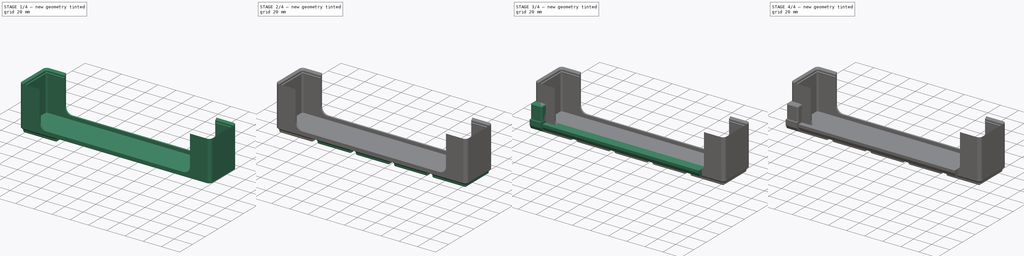
[diagram: build sequence overview — one tinted view per stage of 4, left to right]
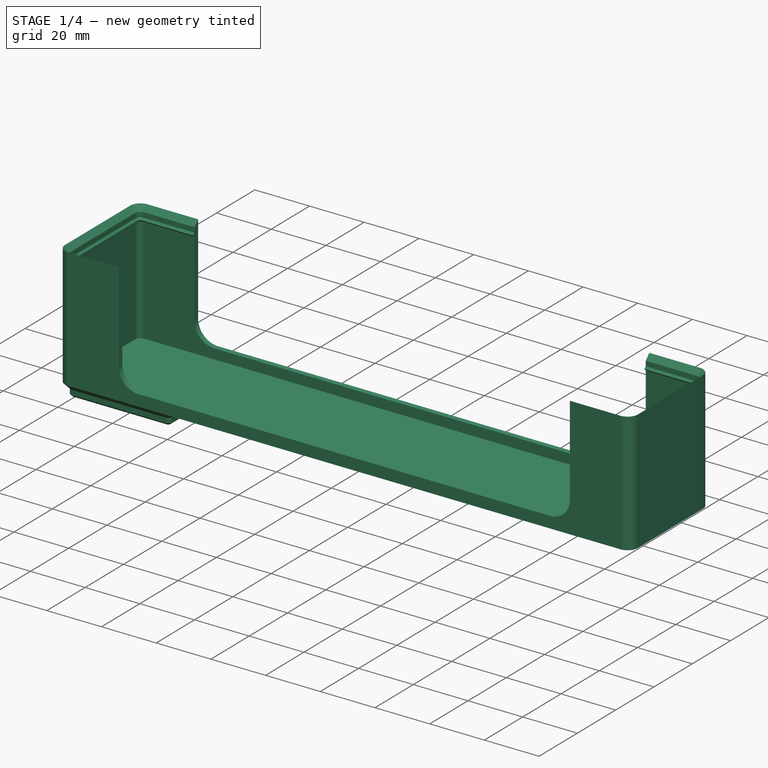
[diagram: stage 1 of 4 — iso view after this stage's code; geometry added in this stage tinted green]
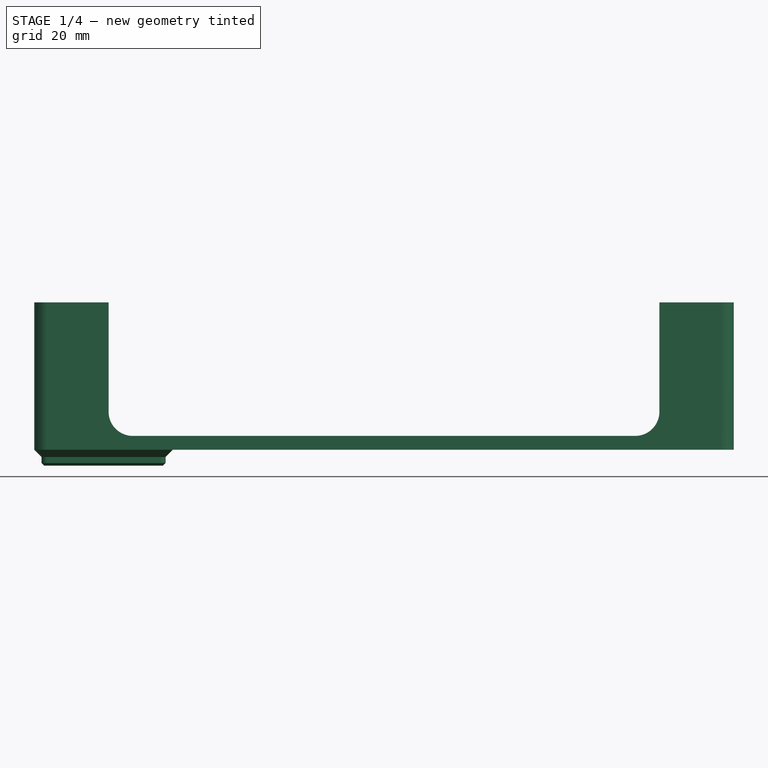
[diagram: stage 1 of 4 — front view after this stage's code; geometry added in this stage tinted green]
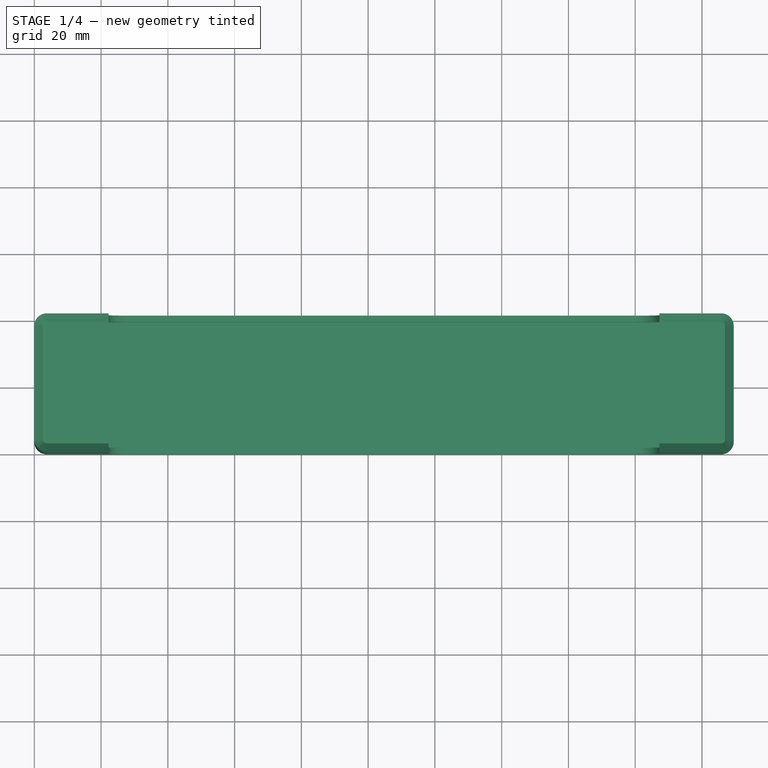
[diagram: stage 1 of 4 — top view after this stage's code; geometry added in this stage tinted green]
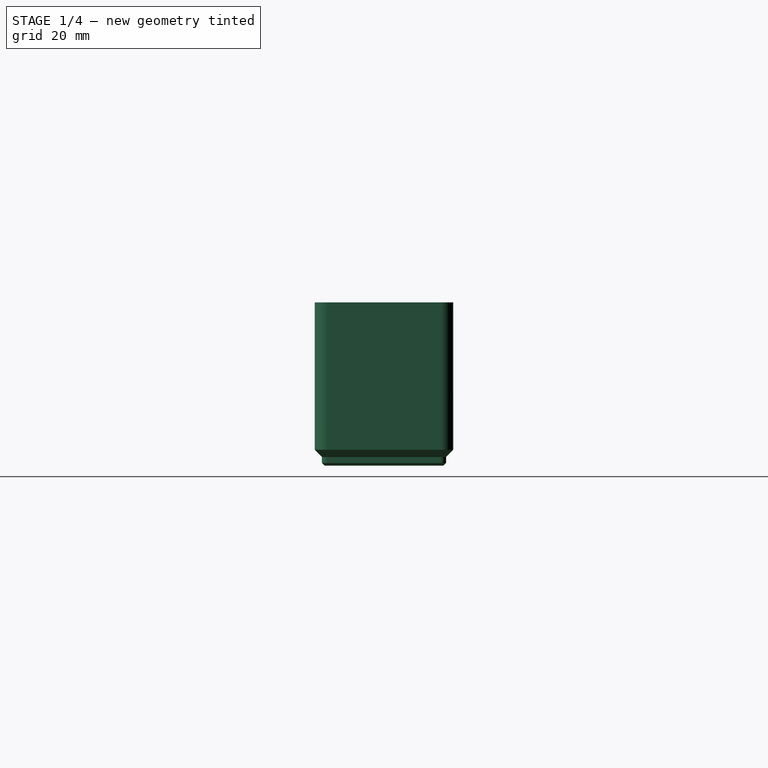
[diagram: stage 1 of 4 — right view after this stage's code; geometry added in this stage tinted green]
FCSTD DOCUMENT  (FreeCAD 0.20R29603 (Git))
Label: GridfinityUniversalSocketHolder
License: All rights reserved
LicenseURL: http://en.wikipedia.org/wiki/All_rights_reserved
objects: Sketcher::SketchObject×12, PartDesign::Pad×6, PartDesign::Body×6, PartDesign::ShapeBinder×4, PartDesign::CoordinateSystem×4, App::Part×4, PartDesign::Chamfer×3, App::DocumentObjectGroup×3, App::Link×3, PartDesign::AdditivePipe×2, PartDesign::Pocket×2, Spreadsheet::Sheet×1, Part::FeaturePython×1, App::FeaturePython×1
note: 52 computed .brp shape members not serialized (recipe doc carries the construction recipe); baked Part::Feature solids carry a one-line shape summary decoded from their .brp

FEATURE [PartDesign::Body] Body007  label="1/2 Socket Stud"
  Group = -> [ShapeBinder005,Sketch009,Pad007,Chamfer013]
  Origin = -> Origin009
  Placement = pos=(193,0,0) rot=(0,0,1;0rad)
  Tip = -> Chamfer013
FEATURE [Sketcher::SketchObject] Sketch001  label="Path"
  FullyConstrained = true
  MapMode = 5
  Support = -> [XY_Plane001]
  sketch-geometry (10):
    g0: ArcOfCircle CenterX=3.75 CenterY=3.75 CenterZ=0 NormalX=0 NormalY=0 NormalZ=1 AngleXU=0 Radius=3.75 StartAngle=3.14159 EndAngle=4.71239
    g1: LineSegment StartX=1.15343e-11 StartY=3.75 StartZ=0 EndX=1.15343e-11 EndY=37.75 EndZ=0
    g2: ArcOfCircle CenterX=3.75 CenterY=37.75 CenterZ=0 NormalX=0 NormalY=0 NormalZ=1 AngleXU=0 Radius=3.75 StartAngle=1.5708 EndAngle=3.14159
    g3: LineSegment StartX=3.75 StartY=41.5 StartZ=0 EndX=37.75 EndY=41.5 EndZ=0
    g4: ArcOfCircle CenterX=37.75 CenterY=37.75 CenterZ=0 NormalX=0 NormalY=0 NormalZ=1 AngleXU=0 Radius=3.75 StartAngle=1.9105e-12 EndAngle=1.5708
    g5: LineSegment StartX=41.5 StartY=37.75 StartZ=0 EndX=41.5 EndY=3.75 EndZ=0
    g6: ArcOfCircle CenterX=37.75 CenterY=3.75 CenterZ=0 NormalX=0 NormalY=0 NormalZ=1 AngleXU=0 Radius=3.75 StartAngle=4.71239 EndAngle=6.28319
    g7: LineSegment StartX=37.75 StartY=1.15343e-11 StartZ=0 EndX=3.75 EndY=1.15343e-11 EndZ=0
    g8: GeomPoint X=0 Y=0 Z=0
    g9: GeomPoint X=41.5 Y=41.5 Z=0
  constraints (23):
    c: Tangent(g0,g1) = 1.5708
    c: Tangent(g1,g2) = 1.5708
    c: Tangent(g2,g3) = 1.5708
    c: Tangent(g3,g4) = 1.5708
    c: Tangent(g4,g5) = 1.5708
    c: Tangent(g5,g6) = 1.5708
    c: Tangent(g6,g7) = 1.5708
    c: Tangent(g7,g0) = 1.5708
    c: Horizontal(g3)
    c: Horizontal(g7)
    c: Vertical(g1)
    c: Vertical(g5)
    c: Equal(g0,g2)
    c: Equal(g2,g4)
    c: Equal(g4,g6)
    c: PointOnObject(g8,g1)
    c: PointOnObject(g8,g7)
    c: PointOnObject(g9,g3)
    c: PointOnObject(g9,g5)
    c: Coincident(g8,g-1)
    c: DistanceX(g1,g4) = 41.5
    c: DistanceY(g6,g3) = 41.5
    c: Diameter(g4) = 7.5
FEATURE [Sketcher::SketchObject] Sketch  label="1UProfile"
  FullyConstrained = true
  MapMode = 7
  Placement = pos=(37.75,1.15343e-11,0) rot=(0.57735,-0.57735,-0.57735;2.0944rad)
  Support = -> [Sketch001]
  sketch-geometry (5):
    g0: LineSegment StartX=-2.95 StartY=-4.75 StartZ=0 EndX=-2.15 EndY=-3.95 EndZ=0
    g1: LineSegment StartX=-2.15 StartY=-3.95 StartZ=0 EndX=-2.15 EndY=-2.15 EndZ=0
    g2: LineSegment StartX=-2.15 StartY=-2.15 StartZ=0 EndX=0 EndY=0 EndZ=0
    g3: LineSegment StartX=0 StartY=0 StartZ=0 EndX=-2.95 EndY=0 EndZ=0
    g4: LineSegment StartX=-2.95 StartY=0 StartZ=0 EndX=-2.95 EndY=-4.75 EndZ=0
  constraints (14):
    c: Vertical(g1)
    c: DistanceX(g1,g2) = 2.15
    c: DistanceY(g1,g2) = 2.15
    c: Distance(g1) = 1.8
    c: DistanceY(g0,g0) = 0.8
    c: DistanceX(g0,g0) = 0.8
    c: Coincident(g0,g1)
    c: Coincident(g1,g2)
    c: Coincident(g2,g3)
    c: Horizontal(g3)
    c: Coincident(g3,g4)
    c: Coincident(g4,g0)
    c: Vertical(g4)
    c: Coincident(g2,g-1)
FEATURE [PartDesign::AdditivePipe] AdditivePipe
  AuxilleryCurvelinear = true
  AuxillerySpineTangent = false
  Binormal = (0,0,0)
  Mode = 0
  Profile = -> Sketch
  Spine = -> Sketch001
  SpineTangent = false
  Transformation = 0
  Transition = 0
FEATURE [PartDesign::CoordinateSystem] LCS_Origin
  AttacherType = Attacher::AttachEngine3D
  MapMode = 2
  Support = -> [X_Axis010]
FEATURE [App::DocumentObjectGroup] Constraints
FEATURE [App::FeaturePython] Variables  # WARN: FeaturePython — macro-defined, semantics opaque (R4)
  Type = App::PropertyContainer
FEATURE [App::DocumentObjectGroup] Configurations
FEATURE [PartDesign::CoordinateSystem] LCS_1
  AttacherType = Attacher::AttachEngine3D
  MapMode = 2
  Support = -> [Pocket]
FEATURE [App::Part] Part
  Group = -> [Body,Array,LCS_1]
  Origin = -> Origin
FEATURE [App::Link] Part002
  AttachedBy = #LCS_1
  AttachedTo = Parent Assembly#LCS_Origin
  LinkedObject = -> Part
  SolverId = Asm4EE
  expr: Placement = LCS_Origin.Placement * AttachmentOffset * LCS_1.Placement ^ -1
FEATURE [PartDesign::CoordinateSystem] LCS_Dovetail
  AttacherType = Attacher::AttachEngine3D
  MapMode = 2
  Placement = pos=(0,0,0) rot=(0.57735,0.57735,0.57735;2.0944rad)
  Support = -> [Pad004]
FEATURE [Sketcher::SketchObject] Sketch010
  FullyConstrained = true
  MapMode = 5
  Support = -> [XY_Plane006]
FEATURE [PartDesign::Body] Body004  label="Dovetail"
  Group = -> [Sketch006,Pad004,Sketch010]
  Origin = -> Origin006
  Placement = pos=(7,0,0) rot=(0,0,1;0rad)
  Tip = -> Pad004
FEATURE [App::Part] Part001  label="Rev2"
  Group = -> [Body004,Body005,Body006,Body007,LCS_Dovetail]
  Origin = -> Origin005
FEATURE [PartDesign::ShapeBinder] ShapeBinder
  Support = -> [Array]
  TraceSupport = false
FEATURE [Sketcher::SketchObject] Sketch011
  FullyConstrained = true
  MapMode = 5
  Support = -> [XY_Plane012]
  expr: Constraints[19] = 5 * 42 - 0.5
  sketch-geometry (10):
    g0: ArcOfCircle CenterX=3.75 CenterY=37.75 CenterZ=0 NormalX=0 NormalY=0 NormalZ=1 AngleXU=0 Radius=3.75 StartAngle=1.5708 EndAngle=3.14159
    g1: LineSegment StartX=3.75 StartY=41.5 StartZ=0 EndX=205.75 EndY=41.5 EndZ=0
    g2: ArcOfCircle CenterX=205.75 CenterY=37.75 CenterZ=0 NormalX=0 NormalY=0 NormalZ=1 AngleXU=0 Radius=3.75 StartAngle=8.262e-13 EndAngle=1.5708
    g3: LineSegment StartX=209.5 StartY=37.75 StartZ=0 EndX=209.5 EndY=3.75 EndZ=0
    g4: ArcOfCircle CenterX=205.75 CenterY=3.75 CenterZ=0 NormalX=0 NormalY=0 NormalZ=1 AngleXU=0 Radius=3.75 StartAngle=4.71239 EndAngle=6.28319
    g5: LineSegment StartX=205.75 StartY=1.08793e-11 StartZ=0 EndX=3.75 EndY=1.08793e-11 EndZ=0
    g6: ArcOfCircle CenterX=3.75 CenterY=3.75 CenterZ=0 NormalX=0 NormalY=0 NormalZ=1 AngleXU=0 Radius=3.75 StartAngle=3.14159 EndAngle=4.71239
    g7: LineSegment StartX=1.07767e-11 StartY=3.75 StartZ=0 EndX=1.07767e-11 EndY=37.75 EndZ=0
    g8: GeomPoint X=0 Y=41.5 Z=0
    g9: GeomPoint X=209.5 Y=0 Z=0
  constraints (24):
    c: Tangent(g0,g1) = 1.5708
    c: Tangent(g1,g2) = 1.5708
    c: Tangent(g2,g3) = 1.5708
    c: Tangent(g3,g4) = 1.5708
    c: Tangent(g4,g5) = 1.5708
    c: Tangent(g5,g6) = 1.5708
    c: Tangent(g6,g7) = 1.5708
    c: Tangent(g7,g0) = 1.5708
    c: Horizontal(g1)
    c: Horizontal(g5)
    c: Vertical(g3)
    c: Vertical(g7)
    c: Equal(g0,g2)
    c: Equal(g2,g4)
    c: Equal(g4,g6)
    c: PointOnObject(g8,g1)
    c: PointOnObject(g8,g7)
    c: PointOnObject(g9,g3)
    c: PointOnObject(g9,g5)
    c: DistanceX(g6,g3) = 209.5
    c: PointOnObject(g6,g-2)
    c: PointOnObject(g5,g-1)
    c: DistanceY(g5,g0) = 41.5
    c: Diameter(g0) = 7.5
FEATURE [PartDesign::Pad] Pad008
  Direction = (0,0,1)
  Length = 0.5
  Length2 = 10
  Profile = -> Sketch011
  ReferenceAxis = -> Sketch011 [N_Axis]
  Type = 0
FEATURE [Sketcher::SketchObject] Sketch012
  FullyConstrained = true
  MapMode = 7
  Placement = pos=(205.75,1.08793e-11,0.5) rot=(0.57735,0.57735,0.57735;2.0944rad)
  Support = -> [Pad008]
  expr: Constraints[19] = 4.25 + 7 * 5
  sketch-geometry (7):
    g0: LineSegment StartX=0 StartY=0 StartZ=0 EndX=0 EndY=43.65 EndZ=0
    g1: LineSegment StartX=0 StartY=43.65 StartZ=0 EndX=1.9 EndY=41.75 EndZ=0
    g2: LineSegment StartX=1.9 StartY=41.75 StartZ=0 EndX=1.9 EndY=39.95 EndZ=0
    g3: LineSegment StartX=1.9 StartY=39.95 StartZ=0 EndX=2.6 EndY=39.25 EndZ=0
    g4: LineSegment StartX=2.6 StartY=39.25 StartZ=0 EndX=1.9 EndY=38.55 EndZ=0
    g5: LineSegment StartX=1.9 StartY=38.55 StartZ=0 EndX=1.9 EndY=0 EndZ=0
    g6: LineSegment StartX=1.9 StartY=0 StartZ=0 EndX=0 EndY=0 EndZ=0
  constraints (20):
    c: Coincident(g-1,g0)
    c: PointOnObject(g0,g-2)
    c: Coincident(g0,g1)
    c: Coincident(g1,g2)
    c: Vertical(g2)
    c: Coincident(g2,g3)
    c: Coincident(g3,g4)
    c: Coincident(g4,g5)
    c: PointOnObject(g5,g-1)
    c: Vertical(g5)
    c: Coincident(g5,g6)
    c: Coincident(g6,g0)
    c: Angle(g0,g1) = 0.785398
    c: Parallel(g1,g3)
    c: Vertical(g4,g2)
    c: DistanceY(g1,g0) = 1.9
    c: DistanceY(g3,g2) = 0.7
    c: Perpendicular(g4,g3)
    c: DistanceY(g2,g2) = 1.8
    c: DistanceY(g0,g3) = 39.25
FEATURE [PartDesign::AdditivePipe] AdditivePipe001
  AuxilleryCurvelinear = true
  AuxillerySpineTangent = false
  BaseFeature = -> Pad008
  Binormal = (0,0,0)
  Mode = 0
  Profile = -> Sketch012
  Spine = -> Pad008 [Edge13,Edge16,Edge19,Edge22,Edge24,Edge4,Edge7,Edge10]
  SpineTangent = false
  Transformation = 0
  Transition = 0
FEATURE [Sketcher::SketchObject] Sketch013
  ExternalGeometry = -> [AdditivePipe001]
  FullyConstrained = true
  MapMode = 5
  Placement = pos=(0,1.08793e-11,0) rot=(1,0,0;1.5708rad)
  Support = -> [AdditivePipe001]
  sketch-geometry (8):
    g0: LineSegment StartX=22.25 StartY=44.15 StartZ=0 EndX=187.25 EndY=44.15 EndZ=0
    g1: LineSegment StartX=187.25 StartY=44.15 StartZ=0 EndX=187.25 EndY=11.4 EndZ=0
    g2: LineSegment StartX=180 StartY=4.15 StartZ=0 EndX=29.5 EndY=4.15 EndZ=0
    g3: LineSegment StartX=22.25 StartY=11.4 StartZ=0 EndX=22.25 EndY=44.15 EndZ=0
    g4: ArcOfCircle CenterX=29.5 CenterY=11.4 CenterZ=0 NormalX=0 NormalY=0 NormalZ=1 AngleXU=0 Radius=7.25 StartAngle=3.14159 EndAngle=4.71239
    g5: ArcOfCircle CenterX=180 CenterY=11.4 CenterZ=0 NormalX=0 NormalY=0 NormalZ=1 AngleXU=0 Radius=7.25 StartAngle=4.71239 EndAngle=6.28319
    g6: LineSegment StartX=3.75 StartY=44.15 StartZ=0 EndX=22.25 EndY=44.15 EndZ=0
    g7: LineSegment StartX=187.25 StartY=44.15 StartZ=0 EndX=205.75 EndY=44.15 EndZ=0
  constraints (20):
    c: Coincident(g0,g1)
    c: Coincident(g3,g0)
    c: Horizontal(g0)
    c: Horizontal(g2)
    c: Vertical(g1)
    c: Vertical(g3)
    c: PointOnObject(g0,g-3)
    c: Tangent(g2,g4) = 1.5708
    c: Tangent(g3,g4) = 1.5708
    c: Tangent(g1,g5) = 1.5708
    c: Tangent(g2,g5) = 1.5708
    c: Equal(g5,g4)
    c: DistanceX(g0,g0) = 165
    c: DistanceY(g2,g0) = 40
    c: Coincident(g6,g-3)
    c: Coincident(g6,g0)
    c: Coincident(g7,g0)
    c: Coincident(g7,g-3)
    c: Equal(g7,g6)
    c: Diameter(g5) = 14.5
FEATURE [PartDesign::Pocket] Pocket001
  BaseFeature = -> AdditivePipe001
  Direction = (0,1,-2e-16)
  Length = 0
  Length2 = 5
  Profile = -> Sketch013
  ReferenceAxis = -> Sketch013 [N_Axis]
  Type = 3
  UpToFace = -> AdditivePipe001 [Face7]
FEATURE [PartDesign::Body] Body008
  Group = -> [ShapeBinder,Sketch011,Pad008,Sketch012,AdditivePipe001,Sketch013,Pocket001]
  Origin = -> Origin012
  Tip = -> Pocket001
FEATURE [PartDesign::CoordinateSystem] LCS_Sides
  AttacherType = Attacher::AttachEngine3D
  AttachmentOffset = pos=(0,0,0.5) rot=(0,0,1;0rad)
  MapMode = 2
  Placement = pos=(0,0,0.5) rot=(0,0,1;0rad)
  Support = -> [Body008]
FEATURE [App::Part] Part003  label="Sides"
  Group = -> [Body008,LCS_Sides]
  Origin = -> Origin011
FEATURE [App::DocumentObjectGroup] Parts
  Group = -> [Part001,Part,Part003]
FEATURE [App::Link] Part003001
  AttachedBy = #LCS_Sides
  AttachedTo = Part002#LCS_1
  LinkPlacement = pos=(0,0,-0.5) rot=(0,0,1;0rad)
  LinkedObject = -> Part003
  Placement = pos=(0,0,-0.5) rot=(0,0,1;0rad)
  SolverId = Asm4EE
  expr: Placement = Part002.Placement * LCS_1.Placement * AttachmentOffset * LCS_Sides.Placement ^ -1
FEATURE [App::Link] Rev2  label="Rev003"
  AttachedBy = #LCS_Dovetail
  AttachedTo = Part003001#LCS_Sides
  AttachmentOffset = pos=(0,21,0) rot=(0.57735,0.57735,0.57735;2.0944rad)
  LinkPlacement = pos=(0,21,0) rot=(0,0,1;0rad)
  LinkedObject = -> Part001
  Placement = pos=(0,21,0) rot=(0,0,1;0rad)
  SolverId = Asm4EE
  expr: Placement = Part003001.Placement * LCS_Sides.Placement * AttachmentOffset * LCS_Dovetail.Placement ^ -1
FEATURE [App::Part] Assembly
  AssemblyType = Part::Link
  Group = -> [LCS_Origin,Constraints,Variables,Configurations,Part002,Part003001,Rev2]
  Origin = -> Origin010
  Type = Assembly
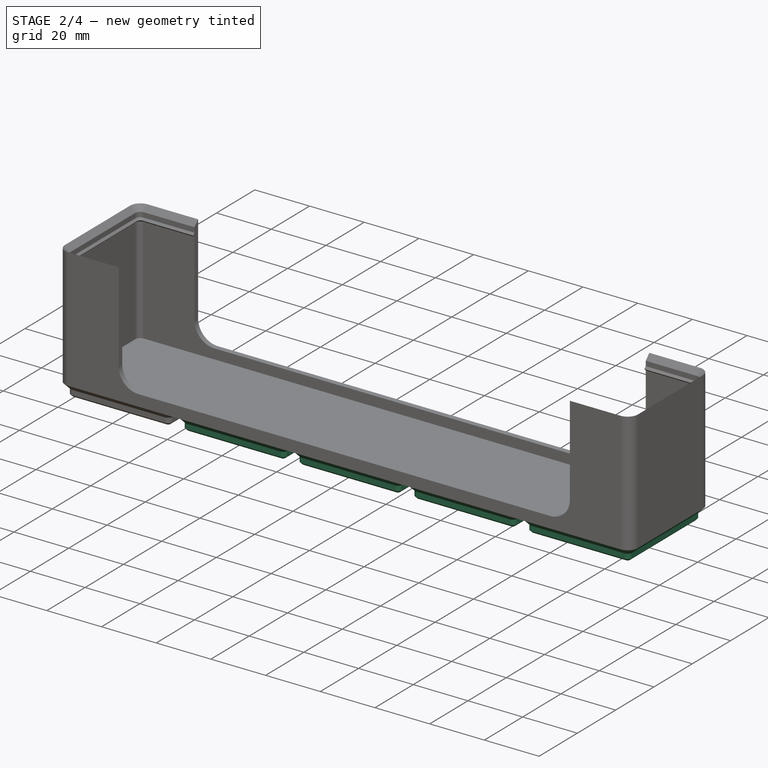
[diagram: stage 2 of 4 — iso view after this stage's code; geometry added in this stage tinted green]
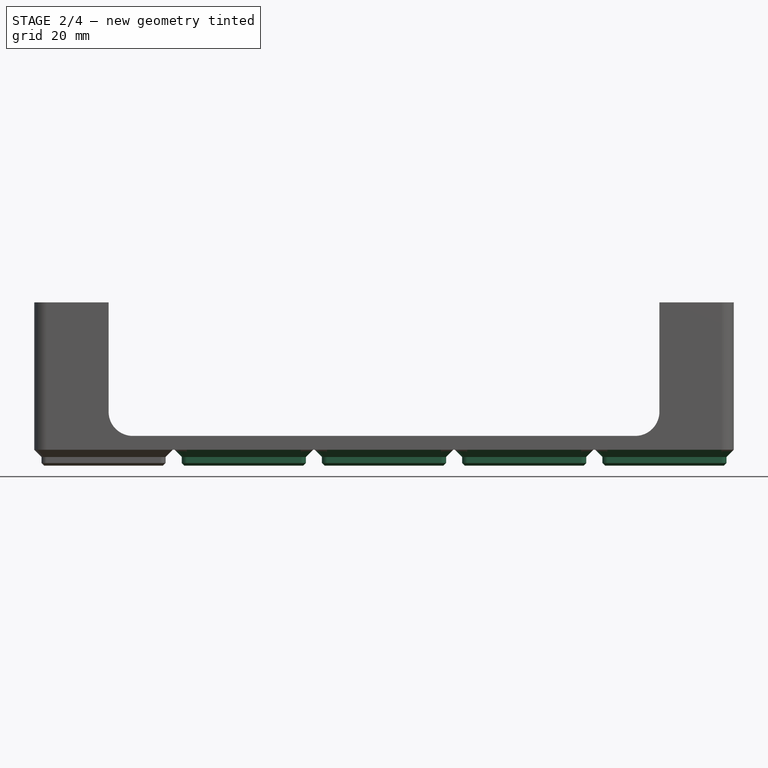
[diagram: stage 2 of 4 — front view after this stage's code; geometry added in this stage tinted green]
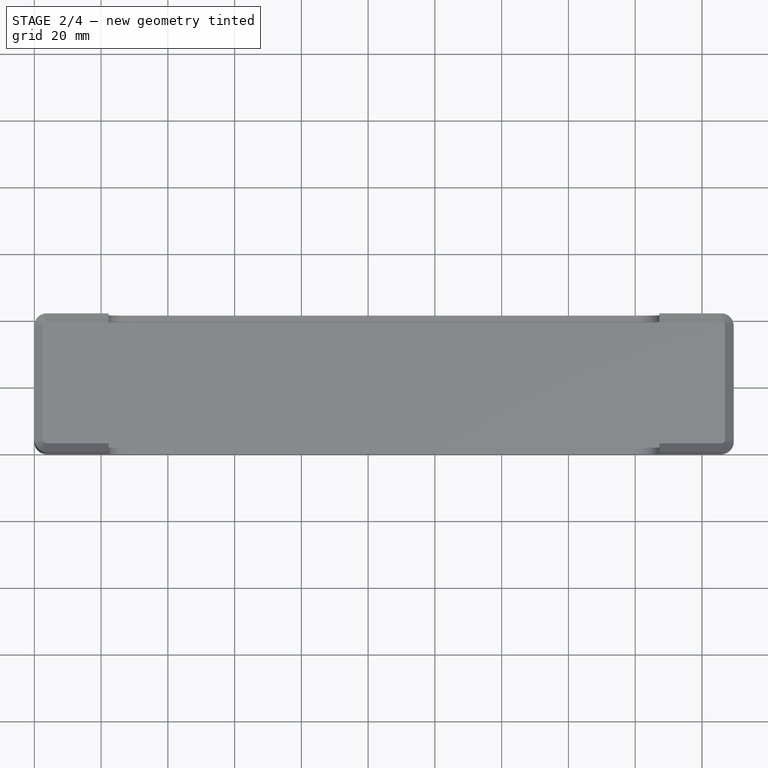
[diagram: stage 2 of 4 — top view after this stage's code; geometry added in this stage tinted green]
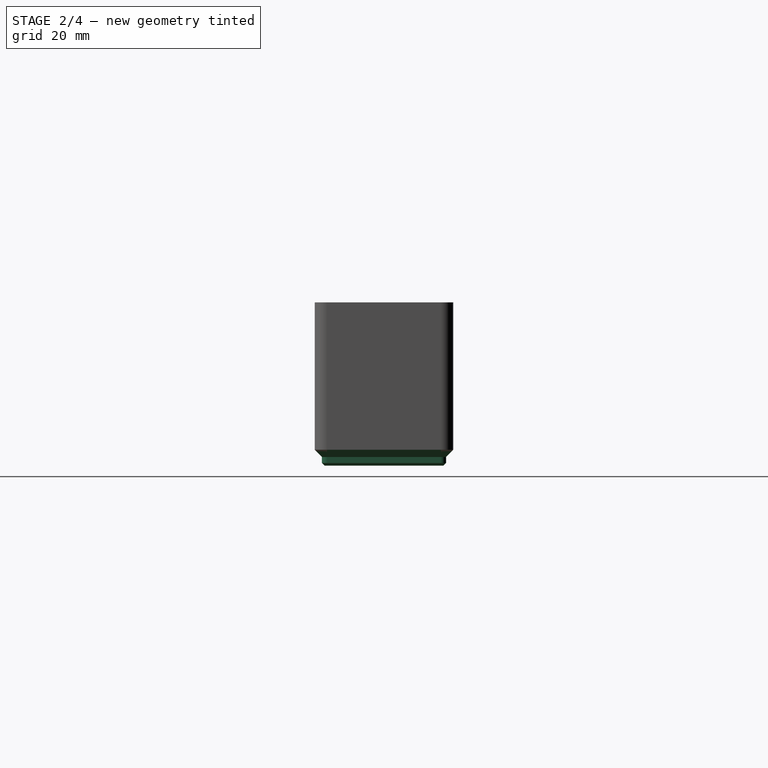
[diagram: stage 2 of 4 — right view after this stage's code; geometry added in this stage tinted green]
FEATURE [Sketcher::SketchObject] Sketch003
  FullyConstrained = true
  MapMode = 2
  Support = -> [AdditivePipe]
  expr: Constraints[21] = 2.15 + 0.8
  sketch-geometry (10):
    g0: ArcOfCircle CenterX=3.75 CenterY=37.75 CenterZ=0 NormalX=0 NormalY=0 NormalZ=1 AngleXU=0 Radius=0.8 StartAngle=1.5708 EndAngle=3.14159
    g1: LineSegment StartX=3.75 StartY=38.55 StartZ=0 EndX=37.75 EndY=38.55 EndZ=0
    g2: ArcOfCircle CenterX=37.75 CenterY=37.75 CenterZ=0 NormalX=0 NormalY=0 NormalZ=1 AngleXU=0 Radius=0.8 StartAngle=1.107e-13 EndAngle=1.5708
    g3: LineSegment StartX=38.55 StartY=37.75 StartZ=0 EndX=38.55 EndY=3.75 EndZ=0
    g4: ArcOfCircle CenterX=37.75 CenterY=3.75 CenterZ=0 NormalX=0 NormalY=0 NormalZ=1 AngleXU=0 Radius=0.8 StartAngle=4.71239 EndAngle=6.28319
    g5: LineSegment StartX=37.75 StartY=2.95 StartZ=0 EndX=3.75 EndY=2.95 EndZ=0
    g6: ArcOfCircle CenterX=3.75 CenterY=3.75 CenterZ=0 NormalX=0 NormalY=0 NormalZ=1 AngleXU=0 Radius=0.8 StartAngle=3.14159 EndAngle=4.71239
    g7: LineSegment StartX=2.95 StartY=3.75 StartZ=0 EndX=2.95 EndY=37.75 EndZ=0
    g8: GeomPoint X=2.95 Y=38.55 Z=0
    g9: GeomPoint X=38.55 Y=2.95 Z=0
  constraints (24):
    c: Tangent(g0,g1) = 1.5708
    c: Tangent(g1,g2) = 1.5708
    c: Tangent(g2,g3) = 1.5708
    c: Tangent(g3,g4) = 1.5708
    c: Tangent(g4,g5) = 1.5708
    c: Tangent(g5,g6) = 1.5708
    c: Tangent(g6,g7) = 1.5708
    c: Tangent(g7,g0) = 1.5708
    c: Horizontal(g1)
    c: Horizontal(g5)
    c: Vertical(g3)
    c: Vertical(g7)
    c: Equal(g0,g2)
    c: Equal(g2,g4)
    c: Equal(g4,g6)
    c: PointOnObject(g8,g1)
    c: PointOnObject(g8,g7)
    c: PointOnObject(g9,g3)
    c: PointOnObject(g9,g5)
    c: DistanceX(g0,g2) = 35.6
    c: DistanceY(g4,g1) = 35.6
    c: DistanceX(g-1,g6) = 2.95
    c: DistanceY(g-1,g5) = 2.95
    c: Diameter(g0) = 1.6
FEATURE [PartDesign::Pad] Pad
  BaseFeature = -> AdditivePipe
  Direction = (0,0,1)
  Length = 4.75
  Length2 = 10
  Profile = -> Sketch003
  ReferenceAxis = -> Sketch003 [N_Axis]
  Reversed = true
  Type = 0
FEATURE [Sketcher::SketchObject] Sketch002
  AttachmentOffset = pos=(0,-41.5,0) rot=(0,0,1;0rad)
  FullyConstrained = true
  MapMode = 5
  Placement = pos=(0,41.5,-4.75) rot=(1,0,0;3.14159rad)
  Support = -> [Pad]
  expr: Constraints[5] = 2.15 + 0.8 + 4.8
  expr: Constraints[8] = 41.5 - 7.75
  sketch-geometry (4):
    g0: Circle CenterX=7.75 CenterY=7.75 CenterZ=0 NormalX=0 NormalY=0 NormalZ=1 AngleXU=0 Radius=3.25
    g1: Circle CenterX=33.75 CenterY=7.75 CenterZ=0 NormalX=0 NormalY=0 NormalZ=1 AngleXU=0 Radius=3.25
    g2: Circle CenterX=33.75 CenterY=33.75 CenterZ=0 NormalX=0 NormalY=0 NormalZ=1 AngleXU=0 Radius=3.25
    g3: Circle CenterX=7.75 CenterY=33.75 CenterZ=0 NormalX=0 NormalY=0 NormalZ=1 AngleXU=0 Radius=3.25
  constraints (12):
    c: Equal(g0,g1)
    c: Equal(g1,g2)
    c: Equal(g2,g3)
    c: Diameter(g0) = 6.5
    c: DistanceX(g-1,g0) = 7.75
    c: DistanceY(g-1,g0) = 7.75
    c: DistanceX(g-1,g3) = 7.75
    c: DistanceY(g-1,g1) = 7.75
    c: DistanceY(g-1,g3) = 33.75
    c: DistanceX(g-1,g1) = 33.75
    c: DistanceX(g-1,g2) = 33.75
    c: DistanceY(g-1,g2) = 33.75
FEATURE [PartDesign::Pocket] Pocket
  BaseFeature = -> Pad
  Direction = (0,0,1)
  Length = 2.1
  Length2 = 5
  Profile = -> Sketch002
  ReferenceAxis = -> Sketch002 [N_Axis]
  Type = 0
FEATURE [PartDesign::Body] Body  label="1U Box Base"
  Group = -> [Sketch,Sketch001,AdditivePipe,Sketch003,Pad,Pocket,Sketch002]
  Origin = -> Origin001
  Tip = -> Pad
FEATURE [Part::FeaturePython] Array  # Draft array (typed FeaturePython)
  AlwaysSyncPlacement = false
  Angle = 360
  ArrayType = 0
  Axis = (0,0,1)
  Base = -> Body
  Center = (0,0,0)
  Count = 5
  ExpandArray = false
  Fuse = false
  IntervalAxis = (0,0,0)
  IntervalX = (42,0,0)
  IntervalY = (0,42,0)
  IntervalZ = (0,0,100)
  NumberCircles = 3
  NumberPolar = 5
  NumberX = 5
  NumberY = 1
  NumberZ = 1
  PlacementList = 5 placements: arithmetic series from (0,0,0) step (42,0,0) to (168,0,0)
  RadialDistance = 50
  ScaleList = (5) [(1,1,1),(1,1,1),(1,1,1),(1,1,1),(1,1,1)]
  Symmetry = 1
  TangentialDistance = 25
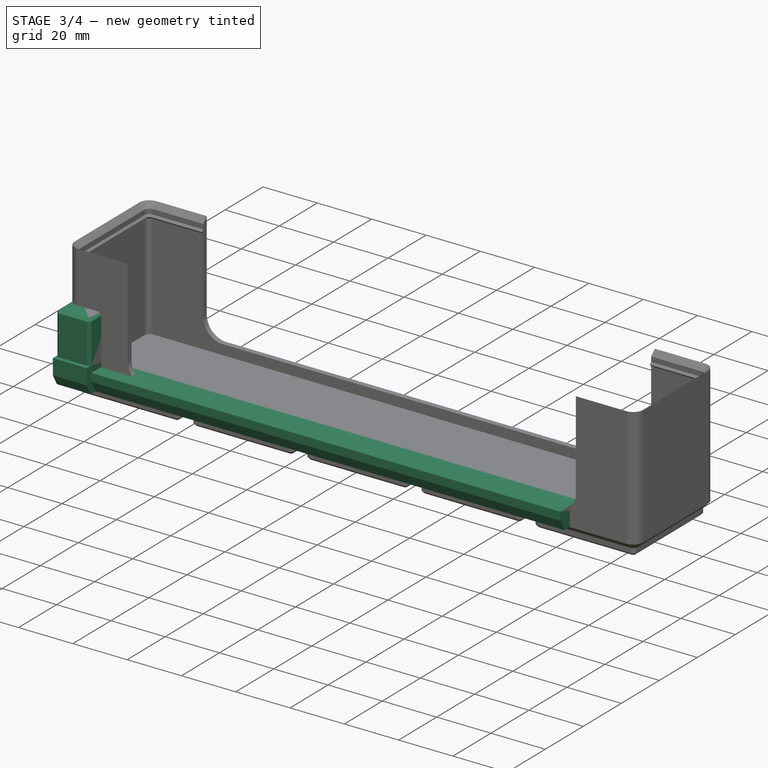
[diagram: stage 3 of 4 — iso view after this stage's code; geometry added in this stage tinted green]
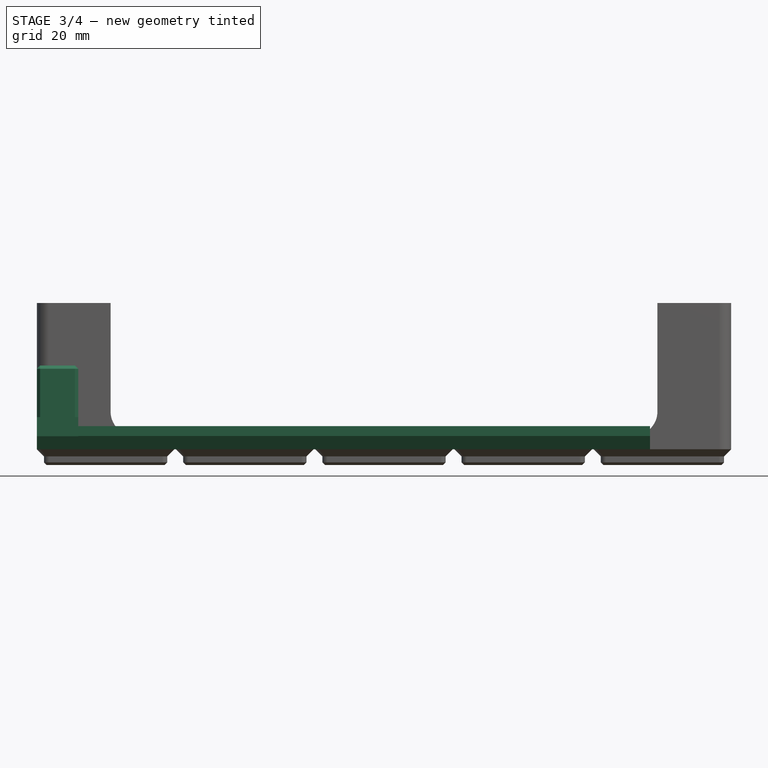
[diagram: stage 3 of 4 — front view after this stage's code; geometry added in this stage tinted green]
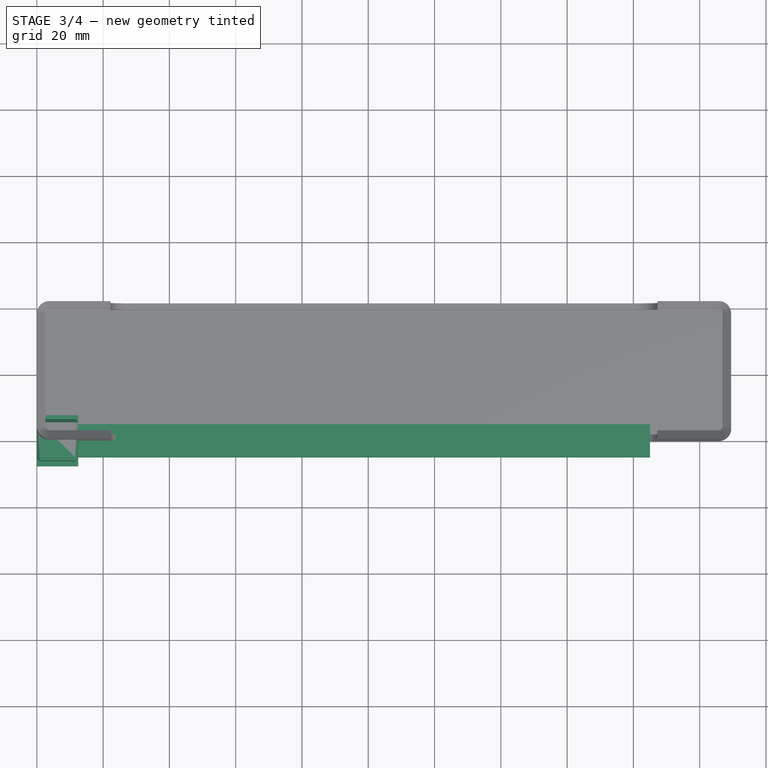
[diagram: stage 3 of 4 — top view after this stage's code; geometry added in this stage tinted green]
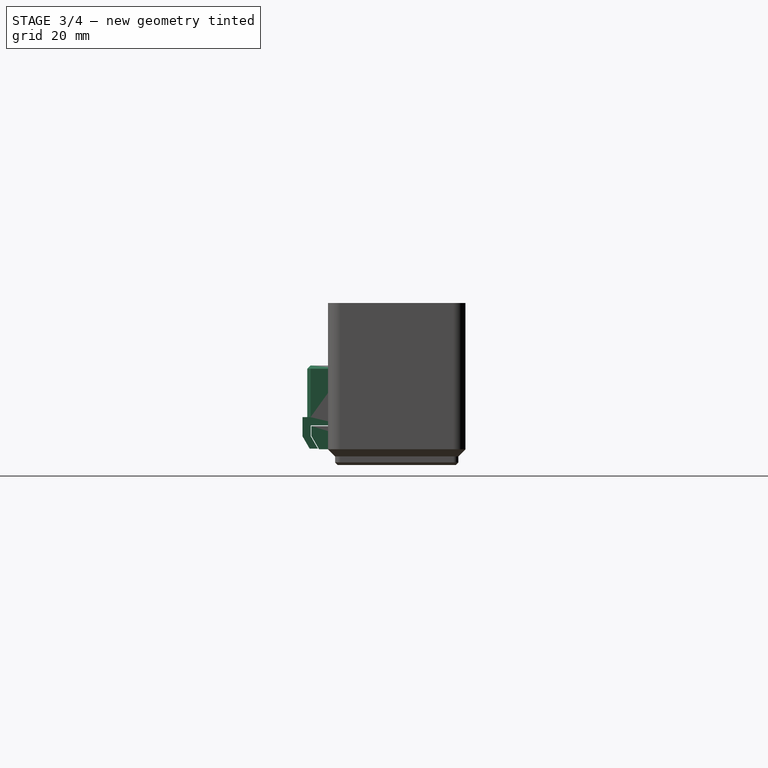
[diagram: stage 3 of 4 — right view after this stage's code; geometry added in this stage tinted green]
FEATURE [Spreadsheet::Sheet] Spreadsheet
  cells = B1=width; C1=height; A2==1 / 4"; B2(width_1_4)=6.2; C2(height_1_4)=7.6; A3==3 / 8"; B3(width_3_8)=9.300000000000001; C3(height_3_8)=11; A4==1 / 2; B4(width_1_2)=12.5; C4(height_1_2)=15.6; A6=tolerance; B6(tolerance)=0.2
FEATURE [Sketcher::SketchObject] Sketch006
  FullyConstrained = true
  MapMode = 5
  Placement = pos=(0,0,0) rot=(0.57735,0.57735,0.57735;2.0944rad)
  Support = -> [YZ_Plane008]
  sketch-geometry (6):
    g0: LineSegment StartX=-5 StartY=4 StartZ=0 EndX=-2.6906 EndY=0 EndZ=0
    g1: LineSegment StartX=-2.6906 StartY=0 StartZ=0 EndX=2.6906 EndY=0 EndZ=0
    g2: LineSegment StartX=2.6906 StartY=0 StartZ=0 EndX=5 EndY=4 EndZ=0
    g3: LineSegment StartX=5 StartY=4 StartZ=0 EndX=5 EndY=7 EndZ=0
    g4: LineSegment StartX=5 StartY=7 StartZ=0 EndX=-5 EndY=7 EndZ=0
    g5: LineSegment StartX=-5 StartY=7 StartZ=0 EndX=-5 EndY=4 EndZ=0
  constraints (16):
    c: PointOnObject(g0,g-1)
    c: Coincident(g0,g1)
    c: Coincident(g1,g2)
    c: Coincident(g2,g3)
    c: Vertical(g3)
    c: Coincident(g3,g4)
    c: Coincident(g4,g5)
    c: Coincident(g5,g0)
    c: Vertical(g5)
    c: Symmetric(g3,g4,g-2)
    c: Symmetric(g0,g1,g-2)
    c: Equal(g3,g5)
    c: Angle(g2,g1) = 2.0944
    c: DistanceY(g3,g3) = 3
    c: DistanceY(g1,g2) = 4
    c: DistanceX(g4,g4) = 10
FEATURE [PartDesign::Pad] Pad004
  Direction = (1,-2e-16,3e-16)
  Length = 185
  Length2 = 10
  Placement = pos=(0,0,0) rot=(0.57735,0.57735,0.57735;2.0944rad)
  Profile = -> Sketch006
  ReferenceAxis = -> Sketch006 [N_Axis]
  Type = 0
FEATURE [PartDesign::Body] Body006  label="3/8 Socket Stud"
  Group = -> [ShapeBinder004,Sketch008,Pad006,Chamfer012]
  Origin = -> Origin008
  Tip = -> Chamfer012
FEATURE [PartDesign::ShapeBinder] ShapeBinder005
  Placement = pos=(0,0,0) rot=(0.57735,0.57735,0.57735;2.0944rad)
  Support = -> [Sketch006]
  TraceSupport = false
FEATURE [Sketcher::SketchObject] Sketch009
  ExternalGeometry = -> [ShapeBinder005]
  FullyConstrained = true
  MapMode = 5
  Placement = pos=(0,0,0) rot=(0.57735,0.57735,0.57735;2.0944rad)
  Support = -> [YZ_Plane011]
  expr: Constraints[24] = Spreadsheet.width_1_2
  expr: Constraints[25] = Spreadsheet.height_1_2
  expr: Constraints[35] = Spreadsheet.tolerance
  expr: Constraints[36] = Spreadsheet.tolerance
  expr: Constraints[38] = Spreadsheet.tolerance
  expr: Constraints[39] = Spreadsheet.tolerance
  sketch-geometry (16):
    g0: LineSegment StartX=3.03701 StartY=0.2 StartZ=0 EndX=5.2 EndY=3.94641 EndZ=0
    g1: LineSegment StartX=5.2 StartY=3.94641 StartZ=0 EndX=5.2 EndY=7.2 EndZ=0
    g2: LineSegment StartX=5.2 StartY=7.2 StartZ=0 EndX=-5.2 EndY=7.2 EndZ=0
    g3: LineSegment StartX=-5.2 StartY=7.2 StartZ=0 EndX=-5.2 EndY=3.94641 EndZ=0
    g4: LineSegment StartX=-5.2 StartY=3.94641 StartZ=0 EndX=-3.03701 EndY=0.2 EndZ=0
    g5: LineSegment StartX=-3.03701 StartY=0.2 StartZ=0 EndX=-5.53701 EndY=0.2 EndZ=0
    g6: LineSegment StartX=-7.7 StartY=3.94641 StartZ=0 EndX=-7.7 EndY=9.7 EndZ=0
    g7: LineSegment StartX=-7.7 StartY=9.7 StartZ=0 EndX=-6.25 EndY=9.7 EndZ=0
    g8: LineSegment StartX=-6.25 StartY=9.7 StartZ=0 EndX=-6.25 EndY=25.3 EndZ=0
    g9: LineSegment StartX=-6.25 StartY=25.3 StartZ=0 EndX=6.25 EndY=25.3 EndZ=0
    g10: LineSegment StartX=6.25 StartY=25.3 StartZ=0 EndX=6.25 EndY=9.7 EndZ=0
    g11: LineSegment StartX=6.25 StartY=9.7 StartZ=0 EndX=7.7 EndY=9.7 EndZ=0
    g12: LineSegment StartX=7.7 StartY=9.7 StartZ=0 EndX=7.7 EndY=3.94641 EndZ=0
    g13: LineSegment StartX=5.53701 StartY=0.2 StartZ=0 EndX=3.03701 EndY=0.2 EndZ=0
    g14: LineSegment StartX=5.53701 StartY=0.2 StartZ=0 EndX=7.7 EndY=3.94641 EndZ=0
    g15: LineSegment StartX=-5.53701 StartY=0.2 StartZ=0 EndX=-7.7 EndY=3.94641 EndZ=0
  constraints (42):
    c: Coincident(g0,g1)
    c: Vertical(g1)
    c: Coincident(g1,g2)
    c: Coincident(g2,g3)
    c: Coincident(g3,g4)
    c: Coincident(g4,g5)
    c: Vertical(g6)
    c: Coincident(g6,g7)
    c: Horizontal(g7)
    c: Coincident(g7,g8)
    c: Vertical(g8)
    c: Coincident(g8,g9)
    c: Coincident(g9,g10)
    c: Vertical(g10)
    c: Coincident(g10,g11)
    c: Horizontal(g11)
    c: Coincident(g11,g12)
    c: Vertical(g12)
    c: Coincident(g13,g0)
    c: Symmetric(g9,g8,g-2)
    c: Symmetric(g11,g6,g-2)
    c: Symmetric(g2,g1,g-2)
    c: Symmetric(g3,g0,g-2)
    c: Symmetric(g4,g0,g-2)
    c: DistanceX(g9,g9) = 12.5
    c: DistanceY(g10,g10) = 15.6
    c: Parallel(g0,g-5)
    c: Parallel(g14,g0)
    c: Symmetric(g14,g15,g-2)
    c: Symmetric(g14,g15,g-2)
    c: DistanceX(g15,g4) = 2.5
    c: PointOnObject(g6,g15)
    c: Coincident(g12,g14)
    c: Coincident(g13,g14)
    c: Symmetric(g13,g5,g-2)
    c: DistanceX(g-4,g1) = 0.2
    c: DistanceY(g-1,g13) = 0.2
    c: Horizontal(g5)
    c: Distance(g0,g-5) = 0.2
    c: DistanceY(g-4,g1) = 0.2
    c: DistanceY(g2,g6) = 2.5
    c: DistanceX(g6,g2) = 2.5
FEATURE [PartDesign::Pad] Pad007
  Direction = (1,-2e-16,3e-16)
  Length = 12.5
  Length2 = 10
  Placement = pos=(0,0,0) rot=(0.57735,0.57735,0.57735;2.0944rad)
  Profile = -> Sketch009
  ReferenceAxis = -> Sketch009 [N_Axis]
  Type = 0
  expr: Length = Spreadsheet.width_1_2
FEATURE [PartDesign::Chamfer] Chamfer013
  Angle = 45
  Base = -> Pad007 [Face12,Edge39,Edge40,Edge33,Edge34]
  BaseFeature = -> Pad007
  ChamferType = 0
  FlipDirection = false
  Placement = pos=(0,0,0) rot=(0.57735,0.57735,0.57735;2.0944rad)
  Size = 1
  Size2 = 1
  SupportTransform = false
  UseAllEdges = false
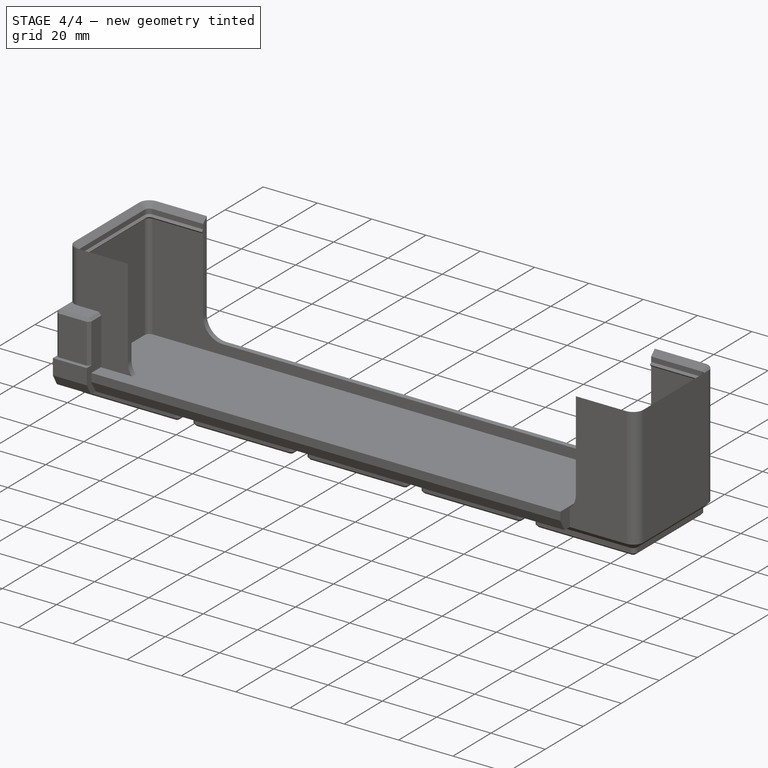
[diagram: stage 4 of 4 — iso view after this stage's code; geometry added in this stage tinted green]
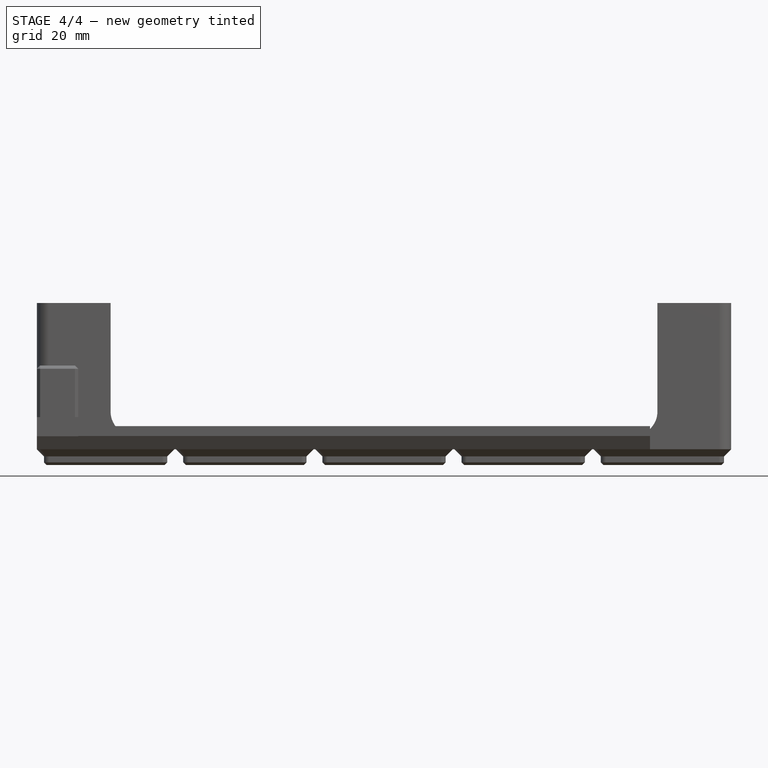
[diagram: stage 4 of 4 — front view after this stage's code; geometry added in this stage tinted green]
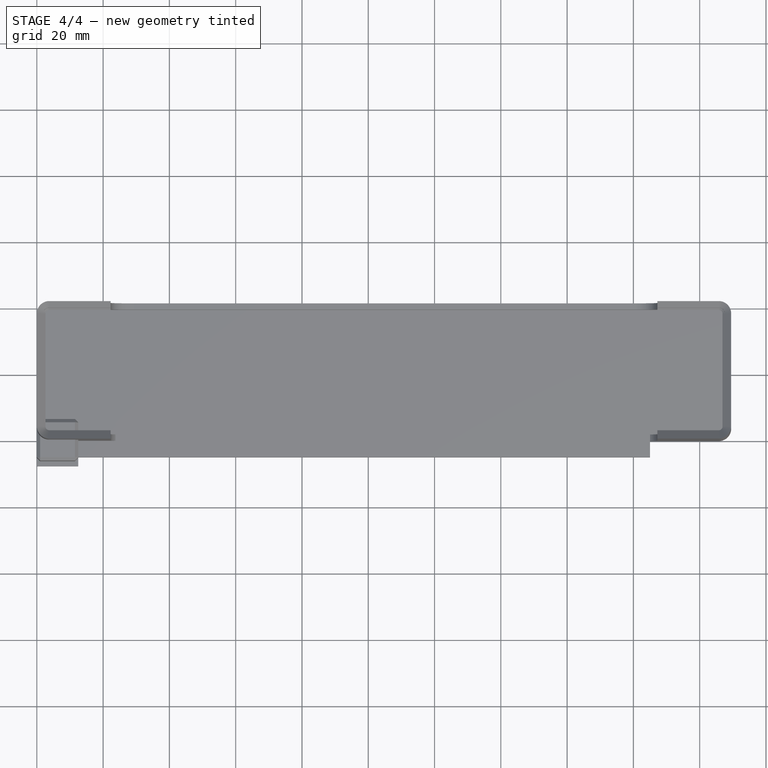
[diagram: stage 4 of 4 — top view after this stage's code; geometry added in this stage tinted green]
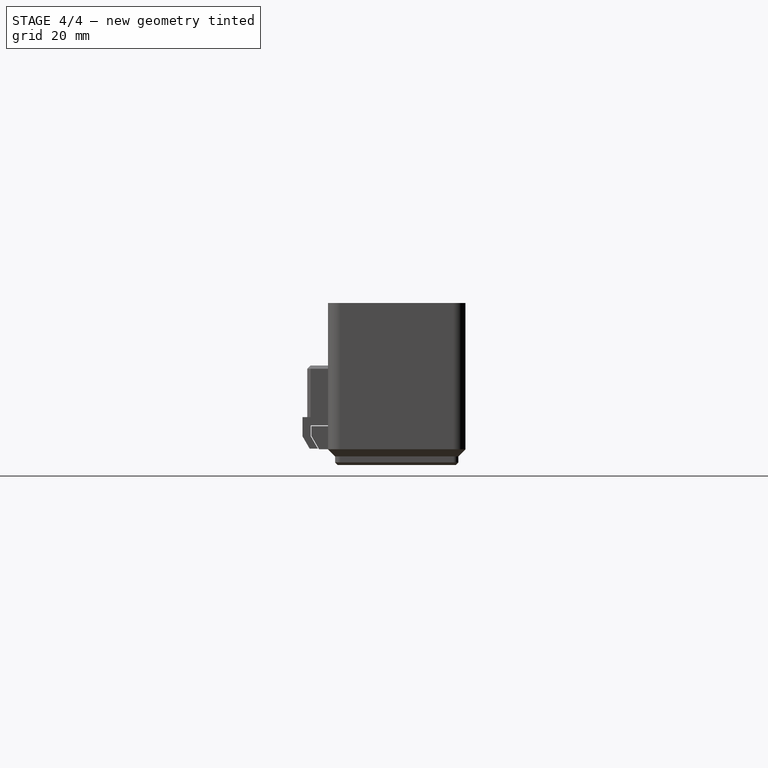
[diagram: stage 4 of 4 — right view after this stage's code; geometry added in this stage tinted green]
FEATURE [PartDesign::ShapeBinder] ShapeBinder003
  Placement = pos=(0,0,0) rot=(0.57735,0.57735,0.57735;2.0944rad)
  Support = -> [Sketch006]
  TraceSupport = false
FEATURE [Sketcher::SketchObject] Sketch007
  ExternalGeometry = -> [ShapeBinder003]
  FullyConstrained = true
  MapMode = 5
  Placement = pos=(0,0,0) rot=(0.57735,0.57735,0.57735;2.0944rad)
  Support = -> [YZ_Plane009]
  expr: Constraints[24] = Spreadsheet.width_1_4
  expr: Constraints[25] = Spreadsheet.height_1_4
  expr: Constraints[35] = Spreadsheet.tolerance
  expr: Constraints[36] = Spreadsheet.tolerance
  expr: Constraints[38] = Spreadsheet.tolerance
  expr: Constraints[39] = Spreadsheet.tolerance
  sketch-geometry (16):
    g0: LineSegment StartX=3.03701 StartY=0.2 StartZ=0 EndX=5.2 EndY=3.94641 EndZ=0
    g1: LineSegment StartX=5.2 StartY=3.94641 StartZ=0 EndX=5.2 EndY=7.2 EndZ=0
    g2: LineSegment StartX=5.2 StartY=7.2 StartZ=0 EndX=-5.2 EndY=7.2 EndZ=0
    g3: LineSegment StartX=-5.2 StartY=7.2 StartZ=0 EndX=-5.2 EndY=3.94641 EndZ=0
    g4: LineSegment StartX=-5.2 StartY=3.94641 StartZ=0 EndX=-3.03701 EndY=0.2 EndZ=0
    g5: LineSegment StartX=-3.03701 StartY=0.2 StartZ=0 EndX=-5.53701 EndY=0.2 EndZ=0
    g6: LineSegment StartX=-7.7 StartY=3.94641 StartZ=0 EndX=-7.7 EndY=9.7 EndZ=0
    g7: LineSegment StartX=-7.7 StartY=9.7 StartZ=0 EndX=-3.1 EndY=9.7 EndZ=0
    g8: LineSegment StartX=-3.1 StartY=9.7 StartZ=0 EndX=-3.1 EndY=17.3 EndZ=0
    g9: LineSegment StartX=-3.1 StartY=17.3 StartZ=0 EndX=3.1 EndY=17.3 EndZ=0
    g10: LineSegment StartX=3.1 StartY=17.3 StartZ=0 EndX=3.1 EndY=9.7 EndZ=0
    g11: LineSegment StartX=3.1 StartY=9.7 StartZ=0 EndX=7.7 EndY=9.7 EndZ=0
    g12: LineSegment StartX=7.7 StartY=9.7 StartZ=0 EndX=7.7 EndY=3.94641 EndZ=0
    g13: LineSegment StartX=5.53701 StartY=0.2 StartZ=0 EndX=3.03701 EndY=0.2 EndZ=0
    g14: LineSegment StartX=5.53701 StartY=0.2 StartZ=0 EndX=7.7 EndY=3.94641 EndZ=0
    g15: LineSegment StartX=-5.53701 StartY=0.2 StartZ=0 EndX=-7.7 EndY=3.94641 EndZ=0
  constraints (42):
    c: Coincident(g0,g1)
    c: Vertical(g1)
    c: Coincident(g1,g2)
    c: Coincident(g2,g3)
    c: Coincident(g3,g4)
    c: Coincident(g4,g5)
    c: Vertical(g6)
    c: Coincident(g6,g7)
    c: Horizontal(g7)
    c: Coincident(g7,g8)
    c: Vertical(g8)
    c: Coincident(g8,g9)
    c: Coincident(g9,g10)
    c: Vertical(g10)
    c: Coincident(g10,g11)
    c: Horizontal(g11)
    c: Coincident(g11,g12)
    c: Vertical(g12)
    c: Coincident(g13,g0)
    c: Symmetric(g9,g8,g-2)
    c: Symmetric(g11,g6,g-2)
    c: Symmetric(g2,g1,g-2)
    c: Symmetric(g3,g0,g-2)
    c: Symmetric(g4,g0,g-2)
    c: DistanceX(g9,g9) = 6.2
    c: DistanceY(g10,g10) = 7.6
    c: Parallel(g0,g-5)
    c: Parallel(g14,g0)
    c: Symmetric(g14,g15,g-2)
    c: Symmetric(g14,g15,g-2)
    c: DistanceX(g15,g4) = 2.5
    c: PointOnObject(g6,g15)
    c: Coincident(g12,g14)
    c: Coincident(g13,g14)
    c: Symmetric(g13,g5,g-2)
    c: DistanceX(g-4,g1) = 0.2
    c: DistanceY(g-1,g13) = 0.2
    c: Horizontal(g5)
    c: Distance(g0,g-5) = 0.2
    c: DistanceY(g-4,g1) = 0.2
    c: DistanceY(g2,g6) = 2.5
    c: DistanceX(g6,g2) = 2.5
FEATURE [PartDesign::Pad] Pad005
  Direction = (1,-2e-16,3e-16)
  Length = 6.2
  Length2 = 10
  Placement = pos=(0,0,0) rot=(0.57735,0.57735,0.57735;2.0944rad)
  Profile = -> Sketch007
  ReferenceAxis = -> Sketch007 [N_Axis]
  Type = 0
  expr: Length = Spreadsheet.width_1_4
FEATURE [PartDesign::Chamfer] Chamfer011
  Angle = 45
  Base = -> Pad005 [Face12,Edge39,Edge40,Edge33,Edge34]
  BaseFeature = -> Pad005
  ChamferType = 0
  FlipDirection = false
  Placement = pos=(0,0,0) rot=(0.57735,0.57735,0.57735;2.0944rad)
  Size = 1
  Size2 = 1
  SupportTransform = false
  UseAllEdges = false
FEATURE [PartDesign::Body] Body005  label="1/4 Socket Stud"
  Group = -> [ShapeBinder003,Sketch007,Pad005,Chamfer011]
  Origin = -> Origin007
  Tip = -> Chamfer011
FEATURE [PartDesign::ShapeBinder] ShapeBinder004
  Placement = pos=(0,0,0) rot=(0.57735,0.57735,0.57735;2.0944rad)
  Support = -> [Sketch006]
  TraceSupport = false
FEATURE [Sketcher::SketchObject] Sketch008
  ExternalGeometry = -> [ShapeBinder004]
  FullyConstrained = true
  MapMode = 5
  Placement = pos=(0,0,0) rot=(0.57735,0.57735,0.57735;2.0944rad)
  Support = -> [YZ_Plane010]
  expr: Constraints[24] = Spreadsheet.width_3_8
  expr: Constraints[25] = Spreadsheet.height_3_8
  expr: Constraints[35] = Spreadsheet.tolerance
  expr: Constraints[36] = Spreadsheet.tolerance
  expr: Constraints[38] = Spreadsheet.tolerance
  expr: Constraints[39] = Spreadsheet.tolerance
  sketch-geometry (16):
    g0: LineSegment StartX=3.03701 StartY=0.2 StartZ=0 EndX=5.2 EndY=3.94641 EndZ=0
    g1: LineSegment StartX=5.2 StartY=3.94641 StartZ=0 EndX=5.2 EndY=7.2 EndZ=0
    g2: LineSegment StartX=5.2 StartY=7.2 StartZ=0 EndX=-5.2 EndY=7.2 EndZ=0
    g3: LineSegment StartX=-5.2 StartY=7.2 StartZ=0 EndX=-5.2 EndY=3.94641 EndZ=0
    g4: LineSegment StartX=-5.2 StartY=3.94641 StartZ=0 EndX=-3.03701 EndY=0.2 EndZ=0
    g5: LineSegment StartX=-3.03701 StartY=0.2 StartZ=0 EndX=-5.53701 EndY=0.2 EndZ=0
    g6: LineSegment StartX=-7.7 StartY=3.94641 StartZ=0 EndX=-7.7 EndY=9.7 EndZ=0
    g7: LineSegment StartX=-7.7 StartY=9.7 StartZ=0 EndX=-4.65 EndY=9.7 EndZ=0
    g8: LineSegment StartX=-4.65 StartY=9.7 StartZ=0 EndX=-4.65 EndY=20.7 EndZ=0
    g9: LineSegment StartX=-4.65 StartY=20.7 StartZ=0 EndX=4.65 EndY=20.7 EndZ=0
    g10: LineSegment StartX=4.65 StartY=20.7 StartZ=0 EndX=4.65 EndY=9.7 EndZ=0
    g11: LineSegment StartX=4.65 StartY=9.7 StartZ=0 EndX=7.7 EndY=9.7 EndZ=0
    g12: LineSegment StartX=7.7 StartY=9.7 StartZ=0 EndX=7.7 EndY=3.94641 EndZ=0
    g13: LineSegment StartX=5.53701 StartY=0.2 StartZ=0 EndX=3.03701 EndY=0.2 EndZ=0
    g14: LineSegment StartX=5.53701 StartY=0.2 StartZ=0 EndX=7.7 EndY=3.94641 EndZ=0
    g15: LineSegment StartX=-5.53701 StartY=0.2 StartZ=0 EndX=-7.7 EndY=3.94641 EndZ=0
  constraints (42):
    c: Coincident(g0,g1)
    c: Vertical(g1)
    c: Coincident(g1,g2)
    c: Coincident(g2,g3)
    c: Coincident(g3,g4)
    c: Coincident(g4,g5)
    c: Vertical(g6)
    c: Coincident(g6,g7)
    c: Horizontal(g7)
    c: Coincident(g7,g8)
    c: Vertical(g8)
    c: Coincident(g8,g9)
    c: Coincident(g9,g10)
    c: Vertical(g10)
    c: Coincident(g10,g11)
    c: Horizontal(g11)
    c: Coincident(g11,g12)
    c: Vertical(g12)
    c: Coincident(g13,g0)
    c: Symmetric(g9,g8,g-2)
    c: Symmetric(g11,g6,g-2)
    c: Symmetric(g2,g1,g-2)
    c: Symmetric(g3,g0,g-2)
    c: Symmetric(g4,g0,g-2)
    c: DistanceX(g9,g9) = 9.3
    c: DistanceY(g10,g10) = 11
    c: Parallel(g0,g-5)
    c: Parallel(g14,g0)
    c: Symmetric(g14,g15,g-2)
    c: Symmetric(g14,g15,g-2)
    c: DistanceX(g15,g4) = 2.5
    c: PointOnObject(g6,g15)
    c: Coincident(g12,g14)
    c: Coincident(g13,g14)
    c: Symmetric(g13,g5,g-2)
    c: DistanceX(g-4,g1) = 0.2
    c: DistanceY(g-1,g13) = 0.2
    c: Horizontal(g5)
    c: Distance(g0,g-5) = 0.2
    c: DistanceY(g-4,g1) = 0.2
    c: DistanceY(g2,g6) = 2.5
    c: DistanceX(g6,g2) = 2.5
FEATURE [PartDesign::Pad] Pad006
  Direction = (1,-2e-16,3e-16)
  Length = 9.3
  Length2 = 10
  Placement = pos=(0,0,0) rot=(0.57735,0.57735,0.57735;2.0944rad)
  Profile = -> Sketch008
  ReferenceAxis = -> Sketch008 [N_Axis]
  Type = 0
  expr: Length = Spreadsheet.width_3_8
FEATURE [PartDesign::Chamfer] Chamfer012
  Angle = 45
  Base = -> Pad006 [Face12,Edge39,Edge40,Edge33,Edge34]
  BaseFeature = -> Pad006
  ChamferType = 0
  FlipDirection = false
  Placement = pos=(0,0,0) rot=(0.57735,0.57735,0.57735;2.0944rad)
  Size = 1
  Size2 = 1
  SupportTransform = false
  UseAllEdges = false
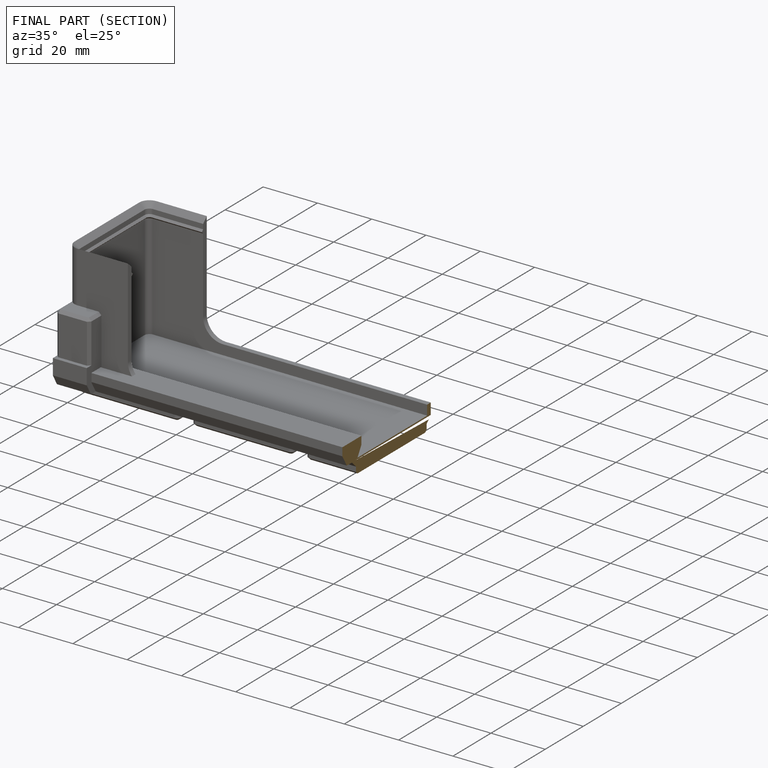
[diagram: finished part — half-section view (interior)]
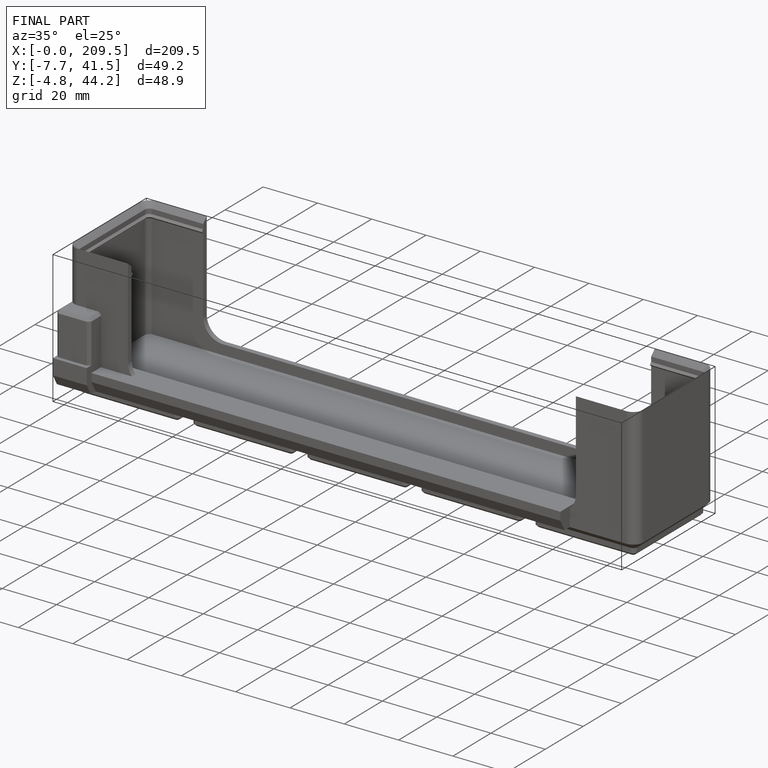
[diagram: finished part — iso view with bounding-box wireframe]
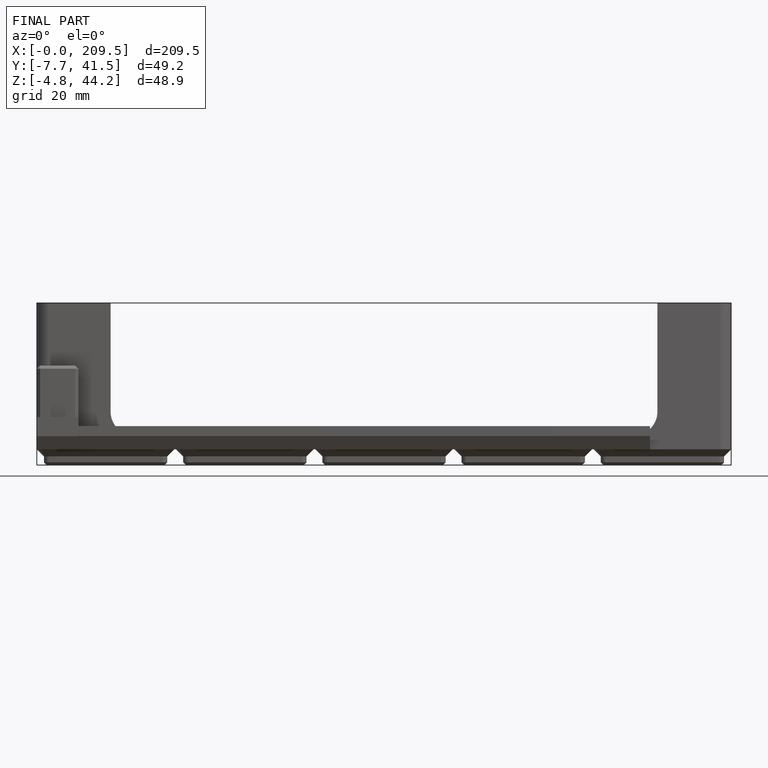
[diagram: finished part — front view with bounding-box wireframe]
